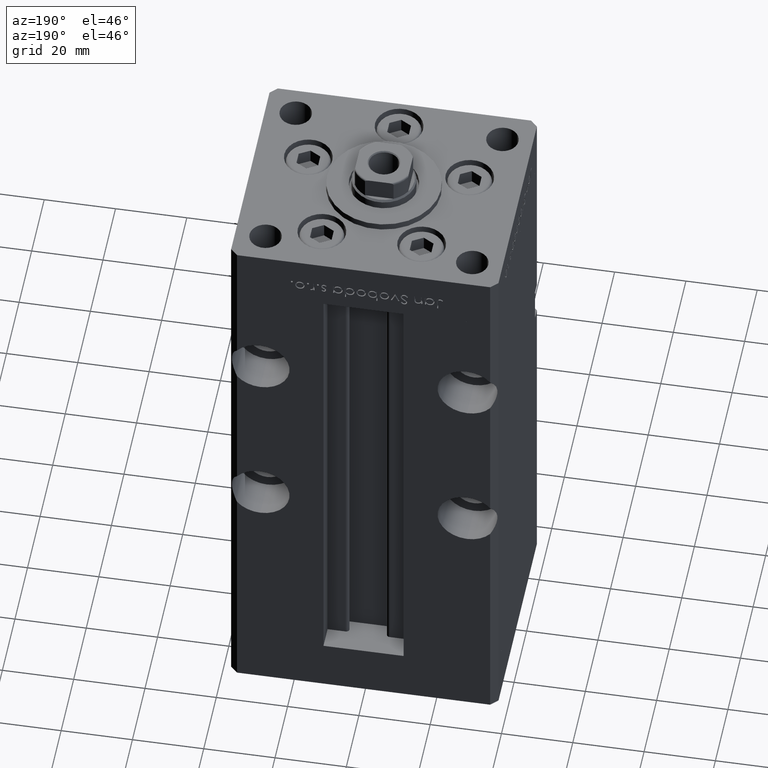
[diagram: clean part render]
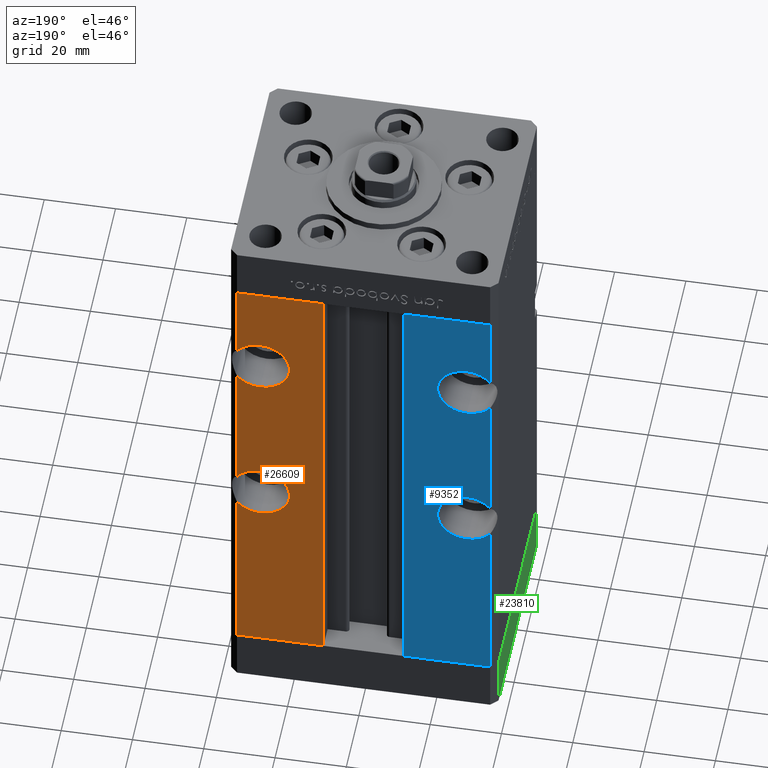
[diagram: same view with three faces highlighted in distinct colors, each labeled with its STEP entity id]
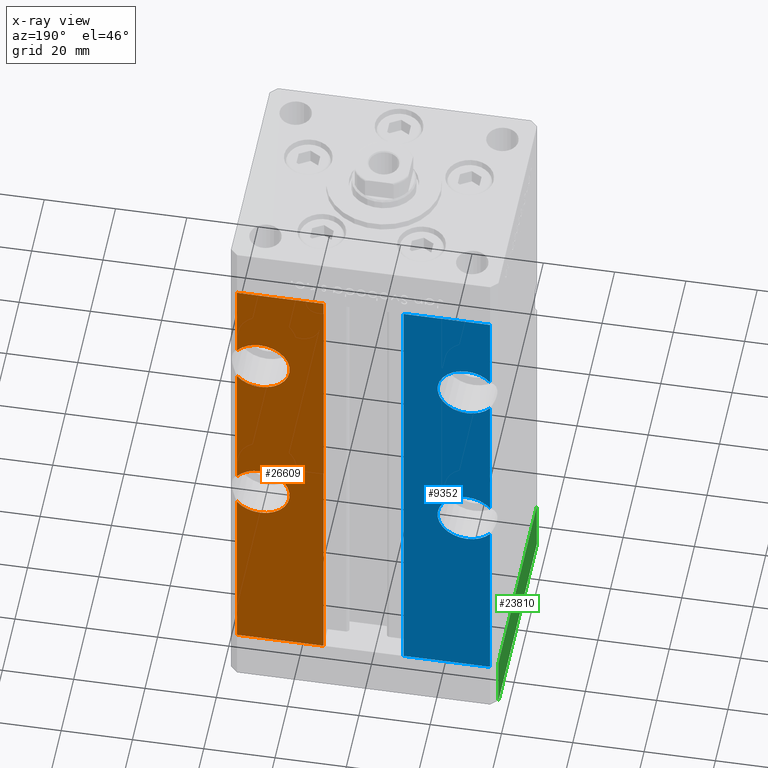
[diagram: x-ray of the same camera — body ghosted, the three highlighted faces saturated]
A machine part, auxiliary view with three faces highlighted in distinct colors.
The next image is the same camera in x-ray (body ghosted, the three faces saturated) — at least one of them is partly hidden behind the body in this view.
Their STEP definitions:

[orange] entity #26609 — the highlighted planar face has unit normal (0, -1, 0).
#1072 = ORIENTED_EDGE ( 'NONE', *, *, #30908, .T. ) ;
#1633 = DIRECTION ( 'NONE',  ( 0.000000000000000000, 1.000000000000000000, 0.000000000000000000 ) ) ;
#1777 = ORIENTED_EDGE ( 'NONE', *, *, #21459, .F. ) ;
#1854 = FACE_OUTER_BOUND ( 'NONE', #4307, .T. ) ;
#2909 = CARTESIAN_POINT ( 'NONE',  ( 35.50000000000000711, 32.50000000000000000, 136.0000000000000000 ) ) ;
#3186 = EDGE_CURVE ( 'NONE', #25013, #23756, #52941, .T. ) ;
#3289 = AXIS2_PLACEMENT_3D ( 'NONE', #31207, #31739, #10527 ) ;
#3381 = ORIENTED_EDGE ( 'NONE', *, *, #17403, .T. ) ;
#3885 = ORIENTED_EDGE ( 'NONE', *, *, #7707, .F. ) ;
#4307 = EDGE_LOOP ( 'NONE', ( #52900, #5216, #3885, #40567, #1072, #40080, #52030, #3381, #6425, #27186, #22830, #1777 ) ) ;
#5216 = ORIENTED_EDGE ( 'NONE', *, *, #9275, .F. ) ;
#6425 = ORIENTED_EDGE ( 'NONE', *, *, #21222, .T. ) ;
#7707 = EDGE_CURVE ( 'NONE', #10104, #41631, #12680, .T. ) ;
#7797 = CARTESIAN_POINT ( 'NONE',  ( 11.24999999999998046, 32.50000000000000000, 0.000000000000000000 ) ) ;
#8141 = CARTESIAN_POINT ( 'NONE',  ( 35.50000000000000711, 32.50000000000000000, 136.0000000000000000 ) ) ;
#8489 = CIRCLE ( 'NONE', #3289, 8.250000000000000000 ) ;
#8595 = DIRECTION ( 'NONE',  ( 0.000000000000000000, 0.000000000000000000, -1.000000000000000000 ) ) ;
#8949 = CARTESIAN_POINT ( 'NONE',  ( 35.50000000000000711, 32.50000000000000000, 113.0806003582254249 ) ) ;
#9275 = EDGE_CURVE ( 'NONE', #41631, #23310, #8489, .T. ) ;
#9969 = CARTESIAN_POINT ( 'NONE',  ( 28.99999999999999645, 32.50000000000000000, 66.25000000000001421 ) ) ;
#10104 = VERTEX_POINT ( 'NONE', #20723 ) ;
#10162 = CARTESIAN_POINT ( 'NONE',  ( 35.50000000000000711, 32.50000000000000000, 0.000000000000000000 ) ) ;
#10484 = EDGE_CURVE ( 'NONE', #49146, #16404, #19005, .T. ) ;
#10527 = DIRECTION ( 'NONE',  ( 0.000000000000000000, 0.000000000000000000, -1.000000000000000000 ) ) ;
#11715 = AXIS2_PLACEMENT_3D ( 'NONE', #38214, #1633, #51102 ) ;
#11880 = LINE ( 'NONE', #12141, #46285 ) ;
#11916 = DIRECTION ( 'NONE',  ( -0.000000000000000000, -0.000000000000000000, -1.000000000000000000 ) ) ;
#12141 = CARTESIAN_POINT ( 'NONE',  ( -11.24999999999998046, 32.50000000000000000, 136.0000000000000000 ) ) ;
#12175 = LINE ( 'NONE', #8141, #43278 ) ;
#12680 = CIRCLE ( 'NONE', #19537, 8.250000000000000000 ) ;
#15967 = VERTEX_POINT ( 'NONE', #36077 ) ;
#16404 = VERTEX_POINT ( 'NONE', #7797 ) ;
#17403 = EDGE_CURVE ( 'NONE', #34581, #29606, #11880, .T. ) ;
#17831 = DIRECTION ( 'NONE',  ( 0.000000000000000000, 1.000000000000000000, 0.000000000000000000 ) ) ;
#18011 = CARTESIAN_POINT ( 'NONE',  ( -11.24999999999998046, 32.50000000000000000, 136.0000000000000000 ) ) ;
#19005 = LINE ( 'NONE', #31085, #23923 ) ;
#19502 = CARTESIAN_POINT ( 'NONE',  ( 11.24999999999998046, 32.50000000000000000, 0.000000000000000000 ) ) ;
#19537 = AXIS2_PLACEMENT_3D ( 'NONE', #28482, #31986, #8595 ) ;
#19734 = DIRECTION ( 'NONE',  ( -0.000000000000000000, -0.000000000000000000, -1.000000000000000000 ) ) ;
#19769 = CARTESIAN_POINT ( 'NONE',  ( 35.50000000000000711, 32.50000000000000000, 63.08060035822539646 ) ) ;
#19777 = CIRCLE ( 'NONE', #33503, 8.250000000000000000 ) ;
#19960 = EDGE_CURVE ( 'NONE', #21974, #23310, #31290, .T. ) ;
#20391 = EDGE_CURVE ( 'NONE', #15967, #10104, #19777, .T. ) ;
#20723 = CARTESIAN_POINT ( 'NONE',  ( 28.99999999999999645, 32.50000000000000000, 49.75000000000001421 ) ) ;
#20999 = VECTOR ( 'NONE', #35883, 1000.000000000000000 ) ;
#21222 = EDGE_CURVE ( 'NONE', #29606, #31949, #31435, .T. ) ;
#21459 = EDGE_CURVE ( 'NONE', #21974, #25013, #42102, .T. ) ;
#21974 = VERTEX_POINT ( 'NONE', #30574 ) ;
#22830 = ORIENTED_EDGE ( 'NONE', *, *, #3186, .F. ) ;
#23029 = DIRECTION ( 'NONE',  ( -1.000000000000000000, 0.000000000000000000, 0.000000000000000000 ) ) ;
#23310 = VERTEX_POINT ( 'NONE', #19769 ) ;
#23756 = VERTEX_POINT ( 'NONE', #26036 ) ;
#23923 = VECTOR ( 'NONE', #23029, 1000.000000000000000 ) ;
#25009 = CARTESIAN_POINT ( 'NONE',  ( 28.99999999999999645, 32.50000000000000000, 58.00000000000001421 ) ) ;
#25013 = VERTEX_POINT ( 'NONE', #45565 ) ;
#25372 = AXIS2_PLACEMENT_3D ( 'NONE', #43070, #17831, #42798 ) ;
#26036 = CARTESIAN_POINT ( 'NONE',  ( 28.99999999999999645, 32.50000000000000000, 116.2500000000000142 ) ) ;
#26062 = DIRECTION ( 'NONE',  ( 0.000000000000000000, 1.000000000000000000, -0.000000000000000000 ) ) ;
#26588 = DIRECTION ( 'NONE',  ( 0.000000000000000000, -1.000000000000000000, 0.000000000000000000 ) ) ;
#26609 = ADVANCED_FACE ( 'NONE', ( #1854 ), #26858, .F. ) ;
#26858 = PLANE ( 'NONE',  #29427 ) ;
#27186 = ORIENTED_EDGE ( 'NONE', *, *, #40597, .F. ) ;
#27394 = CARTESIAN_POINT ( 'NONE',  ( 35.50000000000000711, 32.50000000000000000, 136.0000000000000000 ) ) ;
#28482 = CARTESIAN_POINT ( 'NONE',  ( 28.99999999999999645, 32.50000000000000000, 58.00000000000001421 ) ) ;
#28795 = CARTESIAN_POINT ( 'NONE',  ( 11.24999999999998046, 32.50000000000000000, 136.0000000000000000 ) ) ;
#29427 = AXIS2_PLACEMENT_3D ( 'NONE', #18011, #26588, #30618 ) ;
#29606 = VERTEX_POINT ( 'NONE', #2909 ) ;
#30574 = CARTESIAN_POINT ( 'NONE',  ( 35.50000000000000711, 32.50000000000000000, 102.9193996417746035 ) ) ;
#30618 = DIRECTION ( 'NONE',  ( 0.000000000000000000, -0.000000000000000000, -1.000000000000000000 ) ) ;
#30908 = EDGE_CURVE ( 'NONE', #15967, #49146, #12175, .T. ) ;
#31085 = CARTESIAN_POINT ( 'NONE',  ( -11.24999999999998046, 32.50000000000000000, 0.000000000000000000 ) ) ;
#31207 = CARTESIAN_POINT ( 'NONE',  ( 28.99999999999999645, 32.50000000000000000, 58.00000000000001421 ) ) ;
#31290 = LINE ( 'NONE', #52261, #50659 ) ;
#31435 = LINE ( 'NONE', #27394, #37844 ) ;
#31739 = DIRECTION ( 'NONE',  ( 0.000000000000000000, 1.000000000000000000, -0.000000000000000000 ) ) ;
#31815 = AXIS2_PLACEMENT_3D ( 'NONE', #43201, #43736, #38639 ) ;
#31949 = VERTEX_POINT ( 'NONE', #8949 ) ;
#31986 = DIRECTION ( 'NONE',  ( 0.000000000000000000, 1.000000000000000000, -0.000000000000000000 ) ) ;
#33503 = AXIS2_PLACEMENT_3D ( 'NONE', #25009, #26062, #37379 ) ;
#34581 = VERTEX_POINT ( 'NONE', #28795 ) ;
#35883 = DIRECTION ( 'NONE',  ( -0.000000000000000000, -0.000000000000000000, 1.000000000000000000 ) ) ;
#36077 = CARTESIAN_POINT ( 'NONE',  ( 35.50000000000000711, 32.50000000000000000, 52.91939964177463196 ) ) ;
#37379 = DIRECTION ( 'NONE',  ( 0.000000000000000000, 0.000000000000000000, -1.000000000000000000 ) ) ;
#37715 = EDGE_CURVE ( 'NONE', #16404, #34581, #43948, .T. ) ;
#37844 = VECTOR ( 'NONE', #48100, 1000.000000000000000 ) ;
#38214 = CARTESIAN_POINT ( 'NONE',  ( 28.99999999999999645, 32.50000000000000000, 108.0000000000000142 ) ) ;
#38639 = DIRECTION ( 'NONE',  ( 0.000000000000000000, 0.000000000000000000, 1.000000000000000000 ) ) ;
#40080 = ORIENTED_EDGE ( 'NONE', *, *, #10484, .T. ) ;
#40567 = ORIENTED_EDGE ( 'NONE', *, *, #20391, .F. ) ;
#40597 = EDGE_CURVE ( 'NONE', #23756, #31949, #48542, .T. ) ;
#41631 = VERTEX_POINT ( 'NONE', #9969 ) ;
#42102 = CIRCLE ( 'NONE', #31815, 8.250000000000007105 ) ;
#42798 = DIRECTION ( 'NONE',  ( 0.000000000000000000, 0.000000000000000000, 1.000000000000000000 ) ) ;
#43070 = CARTESIAN_POINT ( 'NONE',  ( 28.99999999999999645, 32.50000000000000000, 108.0000000000000142 ) ) ;
#43201 = CARTESIAN_POINT ( 'NONE',  ( 28.99999999999999645, 32.50000000000000000, 108.0000000000000142 ) ) ;
#43278 = VECTOR ( 'NONE', #11916, 1000.000000000000000 ) ;
#43736 = DIRECTION ( 'NONE',  ( 0.000000000000000000, 1.000000000000000000, 0.000000000000000000 ) ) ;
#43948 = LINE ( 'NONE', #19502, #20999 ) ;
#45565 = CARTESIAN_POINT ( 'NONE',  ( 28.99999999999999645, 32.50000000000000000, 99.75000000000000000 ) ) ;
#46285 = VECTOR ( 'NONE', #49483, 1000.000000000000000 ) ;
#48100 = DIRECTION ( 'NONE',  ( -0.000000000000000000, -0.000000000000000000, -1.000000000000000000 ) ) ;
#48542 = CIRCLE ( 'NONE', #25372, 8.250000000000007105 ) ;
#49146 = VERTEX_POINT ( 'NONE', #10162 ) ;
#49483 = DIRECTION ( 'NONE',  ( 1.000000000000000000, 0.000000000000000000, 0.000000000000000000 ) ) ;
#50659 = VECTOR ( 'NONE', #19734, 1000.000000000000000 ) ;
#51102 = DIRECTION ( 'NONE',  ( 0.000000000000000000, 0.000000000000000000, 1.000000000000000000 ) ) ;
#52030 = ORIENTED_EDGE ( 'NONE', *, *, #37715, .T. ) ;
#52261 = CARTESIAN_POINT ( 'NONE',  ( 35.50000000000000711, 32.50000000000000000, 136.0000000000000000 ) ) ;
#52900 = ORIENTED_EDGE ( 'NONE', *, *, #19960, .T. ) ;
#52941 = CIRCLE ( 'NONE', #11715, 8.250000000000007105 ) ;

[blue] entity #9352 — the highlighted planar face has unit normal (0, -1, 0).
#502 = CIRCLE ( 'NONE', #15087, 8.250000000000007105 ) ;
#1168 = DIRECTION ( 'NONE',  ( 0.000000000000000000, 1.000000000000000000, 0.000000000000000000 ) ) ;
#1472 = EDGE_CURVE ( 'NONE', #29777, #46694, #502, .T. ) ;
#1646 = CARTESIAN_POINT ( 'NONE',  ( -11.24999999999998046, 32.50000000000000000, 0.000000000000000000 ) ) ;
#2099 = VERTEX_POINT ( 'NONE', #16778 ) ;
#2310 = LINE ( 'NONE', #18468, #8744 ) ;
#2432 = DIRECTION ( 'NONE',  ( 0.000000000000000000, -0.000000000000000000, -1.000000000000000000 ) ) ;
#2892 = CARTESIAN_POINT ( 'NONE',  ( -11.24999999999998046, 32.50000000000000000, 0.000000000000000000 ) ) ;
#3151 = EDGE_LOOP ( 'NONE', ( #30253, #39990, #25783, #39206, #30204, #41340, #8658, #13049, #30046, #38182, #22809, #19060 ) ) ;
#3882 = CARTESIAN_POINT ( 'NONE',  ( -35.50000000000000711, 32.50000000000000000, 136.0000000000000000 ) ) ;
#5079 = EDGE_CURVE ( 'NONE', #46694, #15865, #50423, .T. ) ;
#5108 = CIRCLE ( 'NONE', #6803, 8.250000000000000000 ) ;
#5431 = CARTESIAN_POINT ( 'NONE',  ( -28.99999999999999645, 32.50000000000000000, 108.0000000000000142 ) ) ;
#6238 = DIRECTION ( 'NONE',  ( -0.000000000000000000, -0.000000000000000000, -1.000000000000000000 ) ) ;
#6803 = AXIS2_PLACEMENT_3D ( 'NONE', #34007, #17885, #42332 ) ;
#7133 = DIRECTION ( 'NONE',  ( 0.000000000000000000, 1.000000000000000000, -0.000000000000000000 ) ) ;
#7254 = CARTESIAN_POINT ( 'NONE',  ( -11.24999999999998046, 32.50000000000000000, 136.0000000000000000 ) ) ;
#7776 = VERTEX_POINT ( 'NONE', #20437 ) ;
#7828 = VERTEX_POINT ( 'NONE', #13938 ) ;
#8658 = ORIENTED_EDGE ( 'NONE', *, *, #48459, .F. ) ;
#8744 = VECTOR ( 'NONE', #10142, 1000.000000000000000 ) ;
#9153 = VERTEX_POINT ( 'NONE', #12976 ) ;
#9352 = ADVANCED_FACE ( 'NONE', ( #23680 ), #52182, .F. ) ;
#10011 = DIRECTION ( 'NONE',  ( 0.000000000000000000, 1.000000000000000000, -0.000000000000000000 ) ) ;
#10142 = DIRECTION ( 'NONE',  ( -0.000000000000000000, -0.000000000000000000, 1.000000000000000000 ) ) ;
#11291 = LINE ( 'NONE', #7254, #13193 ) ;
#11354 = VECTOR ( 'NONE', #31831, 1000.000000000000000 ) ;
#11938 = EDGE_CURVE ( 'NONE', #9153, #32844, #17939, .T. ) ;
#12976 = CARTESIAN_POINT ( 'NONE',  ( -28.99999999999999645, 32.50000000000000000, 49.75000000000001421 ) ) ;
#13049 = ORIENTED_EDGE ( 'NONE', *, *, #25457, .T. ) ;
#13193 = VECTOR ( 'NONE', #48377, 1000.000000000000000 ) ;
#13375 = CARTESIAN_POINT ( 'NONE',  ( -35.50000000000000711, 32.50000000000000000, 136.0000000000000000 ) ) ;
#13628 = DIRECTION ( 'NONE',  ( -0.000000000000000000, -0.000000000000000000, -1.000000000000000000 ) ) ;
#13760 = EDGE_CURVE ( 'NONE', #2099, #9153, #5108, .T. ) ;
#13938 = CARTESIAN_POINT ( 'NONE',  ( -35.50000000000000711, 32.50000000000000000, 102.9193996417746320 ) ) ;
#15087 = AXIS2_PLACEMENT_3D ( 'NONE', #40362, #24230, #36860 ) ;
#15468 = DIRECTION ( 'NONE',  ( 0.000000000000000000, 0.000000000000000000, -1.000000000000000000 ) ) ;
#15471 = CARTESIAN_POINT ( 'NONE',  ( -28.99999999999999645, 32.50000000000000000, 116.2500000000000142 ) ) ;
#15865 = VERTEX_POINT ( 'NONE', #46846 ) ;
#16778 = CARTESIAN_POINT ( 'NONE',  ( -28.99999999999999645, 32.50000000000000000, 66.25000000000001421 ) ) ;
#17295 = CIRCLE ( 'NONE', #38717, 8.250000000000000000 ) ;
#17885 = DIRECTION ( 'NONE',  ( 0.000000000000000000, 1.000000000000000000, 0.000000000000000000 ) ) ;
#17939 = CIRCLE ( 'NONE', #45406, 8.250000000000000000 ) ;
#18100 = CARTESIAN_POINT ( 'NONE',  ( -28.99999999999999645, 32.50000000000000000, 58.00000000000001421 ) ) ;
#18319 = CARTESIAN_POINT ( 'NONE',  ( -11.24999999999998046, 32.50000000000000000, 136.0000000000000000 ) ) ;
#18468 = CARTESIAN_POINT ( 'NONE',  ( -11.24999999999998046, 32.50000000000000000, 0.000000000000000000 ) ) ;
#18715 = CARTESIAN_POINT ( 'NONE',  ( -28.99999999999999645, 32.50000000000000000, 58.00000000000001421 ) ) ;
#18763 = AXIS2_PLACEMENT_3D ( 'NONE', #18319, #34695, #2432 ) ;
#19060 = ORIENTED_EDGE ( 'NONE', *, *, #22135, .F. ) ;
#20437 = CARTESIAN_POINT ( 'NONE',  ( -35.50000000000000711, 32.50000000000000000, 63.08060035822541067 ) ) ;
#21846 = DIRECTION ( 'NONE',  ( 0.000000000000000000, 0.000000000000000000, -1.000000000000000000 ) ) ;
#22135 = EDGE_CURVE ( 'NONE', #7776, #2099, #17295, .T. ) ;
#22809 = ORIENTED_EDGE ( 'NONE', *, *, #13760, .F. ) ;
#23680 = FACE_OUTER_BOUND ( 'NONE', #3151, .T. ) ;
#24045 = CARTESIAN_POINT ( 'NONE',  ( -35.50000000000000711, 32.50000000000000000, 136.0000000000000000 ) ) ;
#24230 = DIRECTION ( 'NONE',  ( 0.000000000000000000, 1.000000000000000000, -0.000000000000000000 ) ) ;
#25457 = EDGE_CURVE ( 'NONE', #46428, #40607, #29888, .T. ) ;
#25462 = LINE ( 'NONE', #13375, #38215 ) ;
#25783 = ORIENTED_EDGE ( 'NONE', *, *, #5079, .F. ) ;
#25880 = CARTESIAN_POINT ( 'NONE',  ( -35.50000000000000711, 32.50000000000000000, 0.000000000000000000 ) ) ;
#27878 = EDGE_CURVE ( 'NONE', #15865, #7828, #49199, .T. ) ;
#29777 = VERTEX_POINT ( 'NONE', #38819 ) ;
#29888 = LINE ( 'NONE', #1646, #41404 ) ;
#30046 = ORIENTED_EDGE ( 'NONE', *, *, #48581, .F. ) ;
#30204 = ORIENTED_EDGE ( 'NONE', *, *, #38434, .F. ) ;
#30253 = ORIENTED_EDGE ( 'NONE', *, *, #33289, .F. ) ;
#31831 = DIRECTION ( 'NONE',  ( -0.000000000000000000, -0.000000000000000000, -1.000000000000000000 ) ) ;
#32844 = VERTEX_POINT ( 'NONE', #44521 ) ;
#33289 = EDGE_CURVE ( 'NONE', #7828, #7776, #39031, .T. ) ;
#34007 = CARTESIAN_POINT ( 'NONE',  ( -28.99999999999999645, 32.50000000000000000, 58.00000000000001421 ) ) ;
#34100 = AXIS2_PLACEMENT_3D ( 'NONE', #5431, #10011, #21846 ) ;
#34199 = CARTESIAN_POINT ( 'NONE',  ( -35.50000000000000711, 32.50000000000000000, 136.0000000000000000 ) ) ;
#34695 = DIRECTION ( 'NONE',  ( 0.000000000000000000, -1.000000000000000000, 0.000000000000000000 ) ) ;
#35605 = CARTESIAN_POINT ( 'NONE',  ( -11.24999999999998046, 32.50000000000000000, 136.0000000000000000 ) ) ;
#36155 = CARTESIAN_POINT ( 'NONE',  ( -28.99999999999999645, 32.50000000000000000, 108.0000000000000142 ) ) ;
#36726 = VERTEX_POINT ( 'NONE', #3882 ) ;
#36860 = DIRECTION ( 'NONE',  ( 0.000000000000000000, 0.000000000000000000, -1.000000000000000000 ) ) ;
#38182 = ORIENTED_EDGE ( 'NONE', *, *, #11938, .F. ) ;
#38215 = VECTOR ( 'NONE', #13628, 1000.000000000000000 ) ;
#38434 = EDGE_CURVE ( 'NONE', #36726, #29777, #25462, .T. ) ;
#38606 = DIRECTION ( 'NONE',  ( 0.000000000000000000, 0.000000000000000000, 1.000000000000000000 ) ) ;
#38717 = AXIS2_PLACEMENT_3D ( 'NONE', #18100, #1168, #50887 ) ;
#38819 = CARTESIAN_POINT ( 'NONE',  ( -35.50000000000000711, 32.50000000000000000, 113.0806003582253965 ) ) ;
#39031 = LINE ( 'NONE', #34199, #43318 ) ;
#39206 = ORIENTED_EDGE ( 'NONE', *, *, #1472, .F. ) ;
#39990 = ORIENTED_EDGE ( 'NONE', *, *, #27878, .F. ) ;
#40362 = CARTESIAN_POINT ( 'NONE',  ( -28.99999999999999645, 32.50000000000000000, 108.0000000000000142 ) ) ;
#40607 = VERTEX_POINT ( 'NONE', #25880 ) ;
#41093 = VERTEX_POINT ( 'NONE', #35605 ) ;
#41340 = ORIENTED_EDGE ( 'NONE', *, *, #52366, .T. ) ;
#41404 = VECTOR ( 'NONE', #46545, 1000.000000000000000 ) ;
#42332 = DIRECTION ( 'NONE',  ( 0.000000000000000000, 0.000000000000000000, 1.000000000000000000 ) ) ;
#43318 = VECTOR ( 'NONE', #6238, 1000.000000000000000 ) ;
#44521 = CARTESIAN_POINT ( 'NONE',  ( -35.50000000000000711, 32.50000000000000000, 52.91939964177463906 ) ) ;
#45406 = AXIS2_PLACEMENT_3D ( 'NONE', #18715, #46410, #38606 ) ;
#46410 = DIRECTION ( 'NONE',  ( 0.000000000000000000, 1.000000000000000000, 0.000000000000000000 ) ) ;
#46428 = VERTEX_POINT ( 'NONE', #2892 ) ;
#46545 = DIRECTION ( 'NONE',  ( -1.000000000000000000, 0.000000000000000000, 0.000000000000000000 ) ) ;
#46581 = AXIS2_PLACEMENT_3D ( 'NONE', #36155, #7133, #15468 ) ;
#46694 = VERTEX_POINT ( 'NONE', #15471 ) ;
#46846 = CARTESIAN_POINT ( 'NONE',  ( -28.99999999999999645, 32.50000000000000000, 99.75000000000000000 ) ) ;
#48377 = DIRECTION ( 'NONE',  ( 1.000000000000000000, 0.000000000000000000, 0.000000000000000000 ) ) ;
#48459 = EDGE_CURVE ( 'NONE', #46428, #41093, #2310, .T. ) ;
#48581 = EDGE_CURVE ( 'NONE', #32844, #40607, #52546, .T. ) ;
#49199 = CIRCLE ( 'NONE', #46581, 8.250000000000007105 ) ;
#50423 = CIRCLE ( 'NONE', #34100, 8.250000000000007105 ) ;
#50887 = DIRECTION ( 'NONE',  ( 0.000000000000000000, 0.000000000000000000, 1.000000000000000000 ) ) ;
#52182 = PLANE ( 'NONE',  #18763 ) ;
#52366 = EDGE_CURVE ( 'NONE', #36726, #41093, #11291, .T. ) ;
#52546 = LINE ( 'NONE', #24045, #11354 ) ;

[green] entity #23810 — the highlighted planar face has unit normal (-1, -0, 0).
#2373 = VERTEX_POINT ( 'NONE', #51675 ) ;
#4718 = EDGE_CURVE ( 'NONE', #35381, #2373, #33994, .T. ) ;
#5293 = EDGE_LOOP ( 'NONE', ( #51091, #29428, #10688, #38474 ) ) ;
#6758 = EDGE_CURVE ( 'NONE', #2373, #44323, #47306, .T. ) ;
#8416 = VECTOR ( 'NONE', #35744, 1000.000000000000000 ) ;
#10688 = ORIENTED_EDGE ( 'NONE', *, *, #41257, .T. ) ;
#11961 = CARTESIAN_POINT ( 'NONE',  ( 37.50000000000001421, -30.50000000000000711, -15.00000000000000000 ) ) ;
#13688 = PLANE ( 'NONE',  #48199 ) ;
#13948 = DIRECTION ( 'NONE',  ( 1.000000000000000000, 1.478780668045803018E-15, -0.000000000000000000 ) ) ;
#17084 = CARTESIAN_POINT ( 'NONE',  ( 37.49999999999992184, 30.50000000000001066, 0.000000000000000000 ) ) ;
#23810 = ADVANCED_FACE ( 'NONE', ( #50506 ), #13688, .T. ) ;
#26048 = CARTESIAN_POINT ( 'NONE',  ( 37.49999999999992184, 30.50000000000001066, -15.00000000000000000 ) ) ;
#27965 = VECTOR ( 'NONE', #40177, 1000.000000000000000 ) ;
#29428 = ORIENTED_EDGE ( 'NONE', *, *, #4718, .F. ) ;
#30065 = CARTESIAN_POINT ( 'NONE',  ( 37.50000000000001421, -30.50000000000000711, -15.00000000000000000 ) ) ;
#31381 = VECTOR ( 'NONE', #37627, 1000.000000000000000 ) ;
#32085 = VERTEX_POINT ( 'NONE', #44894 ) ;
#33063 = LINE ( 'NONE', #26048, #31381 ) ;
#33994 = LINE ( 'NONE', #42848, #51232 ) ;
#35381 = VERTEX_POINT ( 'NONE', #49150 ) ;
#35744 = DIRECTION ( 'NONE',  ( -1.478780668045802821E-15, 1.000000000000000000, 0.000000000000000000 ) ) ;
#37627 = DIRECTION ( 'NONE',  ( 0.000000000000000000, 0.000000000000000000, 1.000000000000000000 ) ) ;
#38474 = ORIENTED_EDGE ( 'NONE', *, *, #39252, .T. ) ;
#39252 = EDGE_CURVE ( 'NONE', #32085, #44323, #33063, .T. ) ;
#40177 = DIRECTION ( 'NONE',  ( -1.478780668045802821E-15, 1.000000000000000000, 0.000000000000000000 ) ) ;
#41257 = EDGE_CURVE ( 'NONE', #35381, #32085, #44206, .T. ) ;
#42320 = DIRECTION ( 'NONE',  ( 0.000000000000000000, 0.000000000000000000, 1.000000000000000000 ) ) ;
#42848 = CARTESIAN_POINT ( 'NONE',  ( 37.50000000000001421, -30.50000000000000711, -15.00000000000000000 ) ) ;
#44206 = LINE ( 'NONE', #11961, #27965 ) ;
#44323 = VERTEX_POINT ( 'NONE', #17084 ) ;
#44894 = CARTESIAN_POINT ( 'NONE',  ( 37.49999999999992184, 30.50000000000001066, -15.00000000000000000 ) ) ;
#46466 = DIRECTION ( 'NONE',  ( -1.478780668045803018E-15, 1.000000000000000000, 0.000000000000000000 ) ) ;
#47040 = CARTESIAN_POINT ( 'NONE',  ( 37.50000000000001421, -30.50000000000000711, 0.000000000000000000 ) ) ;
#47306 = LINE ( 'NONE', #47040, #8416 ) ;
#48199 = AXIS2_PLACEMENT_3D ( 'NONE', #30065, #13948, #46466 ) ;
#49150 = CARTESIAN_POINT ( 'NONE',  ( 37.50000000000001421, -30.50000000000000711, -15.00000000000000000 ) ) ;
#50506 = FACE_OUTER_BOUND ( 'NONE', #5293, .T. ) ;
#51091 = ORIENTED_EDGE ( 'NONE', *, *, #6758, .F. ) ;
#51232 = VECTOR ( 'NONE', #42320, 1000.000000000000000 ) ;
#51675 = CARTESIAN_POINT ( 'NONE',  ( 37.50000000000001421, -30.50000000000000711, 0.000000000000000000 ) ) ;